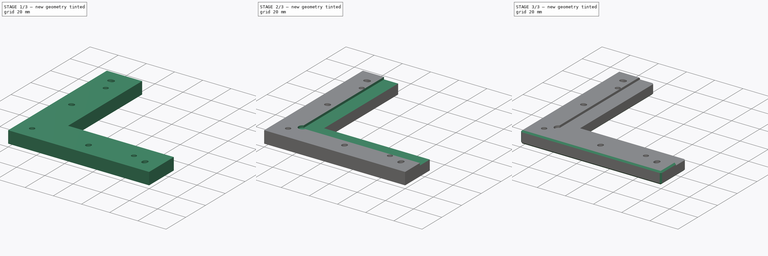
[diagram: build sequence overview — one tinted view per stage of 3, left to right]
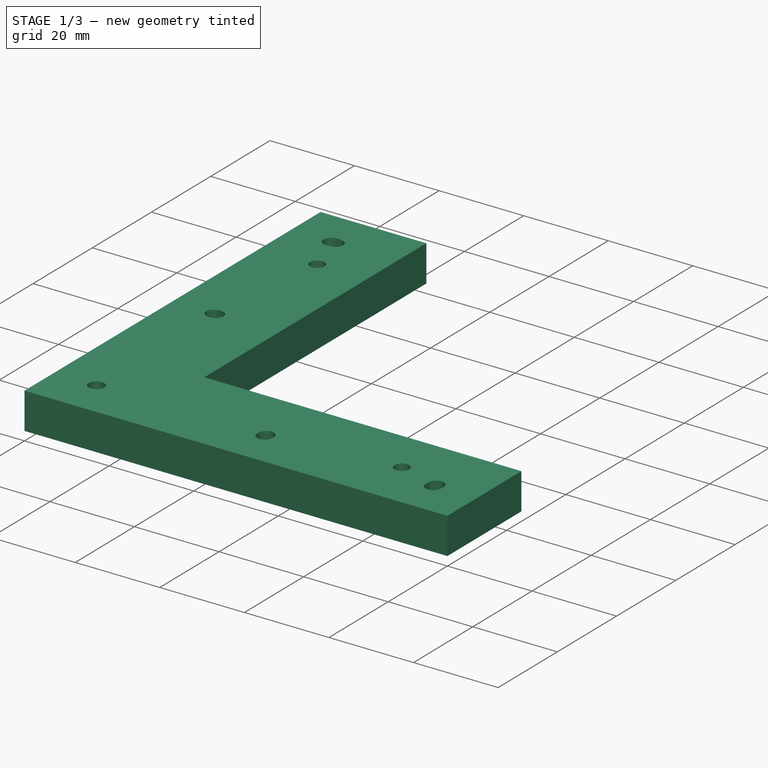
[diagram: stage 1 of 3 — iso view after this stage's code; geometry added in this stage tinted green]
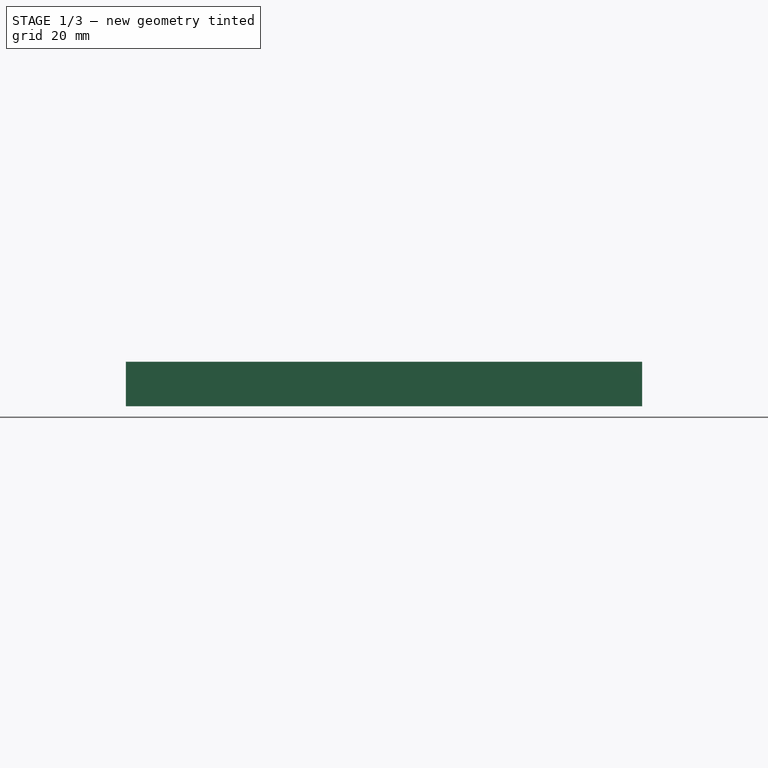
[diagram: stage 1 of 3 — front view after this stage's code; geometry added in this stage tinted green]
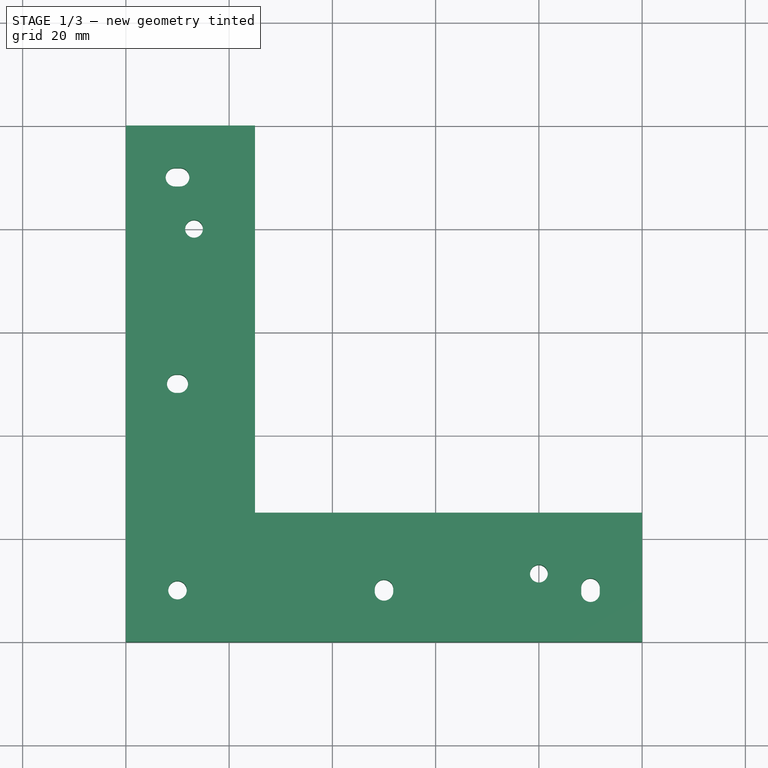
[diagram: stage 1 of 3 — top view after this stage's code; geometry added in this stage tinted green]
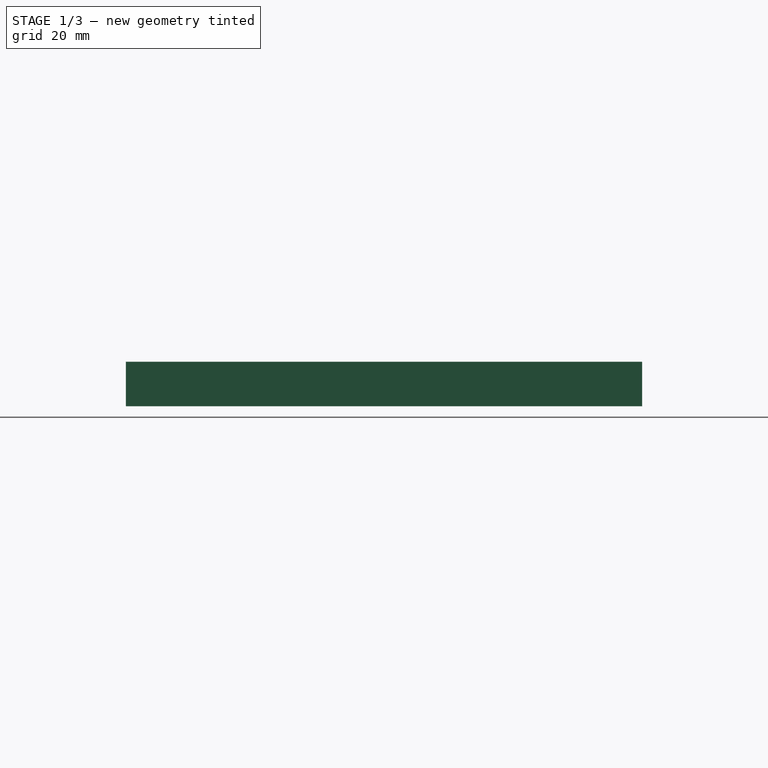
[diagram: stage 1 of 3 — right view after this stage's code; geometry added in this stage tinted green]
FCSTD DOCUMENT  (FreeCAD 0.16R6698 (Git))
Label: pnp board corner mount
License: All rights reserved
LicenseURL: http://en.wikipedia.org/wiki/All_rights_reserved
objects: Sketcher::SketchObject×4, PartDesign::Pocket×3, PartDesign::Pad×1, PartDesign::Chamfer×1
note: 13 computed .brp shape members not serialized (recipe doc carries the construction recipe); baked Part::Feature solids carry a one-line shape summary decoded from their .brp

FEATURE [Sketcher::SketchObject] Sketch
  sketch-geometry (6):
    g0: LineSegment StartX=0 StartY=0 StartZ=0 EndX=0 EndY=100 EndZ=0
    g1: LineSegment StartX=0 StartY=100 StartZ=0 EndX=25 EndY=100 EndZ=0
    g2: LineSegment StartX=25 StartY=100 StartZ=0 EndX=25 EndY=25 EndZ=0
    g3: LineSegment StartX=25 StartY=25 StartZ=0 EndX=100 EndY=25 EndZ=0
    g4: LineSegment StartX=100 StartY=25 StartZ=0 EndX=100 EndY=0 EndZ=0
    g5: LineSegment StartX=100 StartY=0 StartZ=0 EndX=0 EndY=0 EndZ=0
  constraints (16):
    c: Coincident(g-1,g0)
    c: Vertical(g0)
    c: Coincident(g0,g1)
    c: Horizontal(g1)
    c: Coincident(g1,g2)
    c: Vertical(g2)
    c: Horizontal(g3)
    c: Coincident(g3,g4)
    c: PointOnObject(g4,g-1)
    c: Vertical(g4)
    c: Coincident(g4,g5)
    c: Coincident(g5,g0)
    c: Equal(g5,g0)
    c: DistanceY(g0,g0) = 100
    c: Coincident(g2,g3)
    c: Equal(g1,g4)
FEATURE [PartDesign::Pad] Pad
  Length = 8.6
  Length2 = 100
  Sketch = -> Sketch
  Type = 0
FEATURE [Sketcher::SketchObject] Sketch001
  Placement = pos=(0,0,8.6) rot=(0,0,1;0rad)
  Support = -> Pad [Face8]
  sketch-geometry (22):
    g0: Circle CenterX=10 CenterY=10 CenterZ=0 NormalX=0 NormalY=0 NormalZ=1 Radius=1.8
    g1: ArcOfCircle CenterX=9.75 CenterY=50 CenterZ=0 NormalX=0 NormalY=0 NormalZ=1 Radius=1.8 StartAngle=1.5708 EndAngle=4.71239
    g2: ArcOfCircle CenterX=10.25 CenterY=50 CenterZ=0 NormalX=0 NormalY=0 NormalZ=1 Radius=1.8 StartAngle=4.71239 EndAngle=7.85398
    g3: LineSegment StartX=9.75 StartY=48.2 StartZ=0 EndX=10.25 EndY=48.2 EndZ=0
    g4: LineSegment StartX=9.75 StartY=51.8 StartZ=0 EndX=10.25 EndY=51.8 EndZ=0
    g5: LineSegment [constr] StartX=10 StartY=100 StartZ=0 EndX=10 EndY=10 EndZ=0
    g6: LineSegment [constr] StartX=10 StartY=10 StartZ=0 EndX=100 EndY=10 EndZ=0
    g7: ArcOfCircle CenterX=9.5 CenterY=90 CenterZ=0 NormalX=0 NormalY=0 NormalZ=1 Radius=1.8 StartAngle=1.5708 EndAngle=4.71239
    g8: ArcOfCircle CenterX=10.5 CenterY=90 CenterZ=0 NormalX=0 NormalY=0 NormalZ=1 Radius=1.8 StartAngle=4.71239 EndAngle=7.85398
    g9: LineSegment StartX=9.5 StartY=88.2 StartZ=0 EndX=10.5 EndY=88.2 EndZ=0
    g10: LineSegment StartX=9.5 StartY=91.8 StartZ=0 EndX=10.5 EndY=91.8 EndZ=0
    g11: ArcOfCircle CenterX=50 CenterY=10.25 CenterZ=0 NormalX=0 NormalY=0 NormalZ=1 Radius=1.8 StartAngle=0 EndAngle=3.14159
    g12: ArcOfCircle CenterX=50 CenterY=9.75 CenterZ=0 NormalX=0 NormalY=0 NormalZ=1 Radius=1.8 StartAngle=3.14159 EndAngle=6.28319
    g13: LineSegment StartX=48.2 StartY=10.25 StartZ=0 EndX=48.2 EndY=9.75 EndZ=0
    g14: LineSegment StartX=51.8 StartY=10.25 StartZ=0 EndX=51.8 EndY=9.75 EndZ=0
    g15: ArcOfCircle CenterX=90 CenterY=10.5 CenterZ=0 NormalX=0 NormalY=0 NormalZ=1 Radius=1.8 StartAngle=0 EndAngle=3.14159
    g16: ArcOfCircle CenterX=90 CenterY=9.5 CenterZ=0 NormalX=0 NormalY=0 NormalZ=1 Radius=1.8 StartAngle=3.14159 EndAngle=6.28319
    g17: LineSegment StartX=88.2 StartY=10.5 StartZ=0 EndX=88.2 EndY=9.5 EndZ=0
    g18: LineSegment StartX=91.8 StartY=10.5 StartZ=0 EndX=91.8 EndY=9.5 EndZ=0
    g19: Circle CenterX=80 CenterY=13.2 CenterZ=0 NormalX=0 NormalY=0 NormalZ=1 Radius=1.73
    g20: Circle CenterX=13.2 CenterY=80 CenterZ=0 NormalX=0 NormalY=0 NormalZ=1 Radius=1.73
    g21: Circle [constr] CenterX=80 CenterY=13.2 CenterZ=0 NormalX=0 NormalY=0 NormalZ=1 Radius=3
  constraints (45):
    c: Tangent(g1,g4) = 1.5708
    c: Tangent(g1,g3) = -1.5708
    c: Tangent(g3,g2) = -1.5708
    c: Tangent(g4,g2) = 1.5708
    c: Horizontal(g3)
    c: Equal(g1,g2)
    c: Vertical(g5)
    c: Coincident(g6,g0)
    c: Horizontal(g6)
    c: Tangent(g7,g10) = 1.5708
    c: Tangent(g7,g9) = -1.5708
    c: Tangent(g9,g8) = -1.5708
    c: Tangent(g10,g8) = 1.5708
    c: Horizontal(g9)
    c: Equal(g7,g8)
    c: DistanceY(g0,g1) = 40
    c: DistanceY(g1,g7) = 40
    c: Tangent(g11,g14) = 1.5708
    c: Tangent(g11,g13) = -1.5708
    c: Tangent(g13,g12) = -1.5708
    c: Tangent(g14,g12) = 1.5708
    c: Vertical(g13)
    c: Equal(g11,g12)
    c: Tangent(g15,g18) = 1.5708
    c: Tangent(g15,g17) = -1.5708
    c: Tangent(g17,g16) = -1.5708
    c: Tangent(g18,g16) = 1.5708
    c: Vertical(g17)
    c: Equal(g15,g16)
    c: Equal(g15,g11)
    c: Equal(g11,g0)
    c: Equal(g0,g1)
    c: Equal(g1,g7)
    c: DistanceX(g0,g12) = 40
    c: Coincident(g0,g5)
    c: DistanceX(g11,g15) = 40
    c: Radius(g0) = 1.8
    c: DistanceX(g0,g19) = 70
    c: DistanceY(g0,g20) = 70
    c: Radius(g20) = 1.73
    c: Equal(g20,g19)
    c: Coincident(g21,g19)
    c: Radius(g21) = 3
    c: DistanceY(g6,g19) = 3.2
    c: DistanceX(g5,g20) = 3.2
FEATURE [PartDesign::Pocket] Pocket
  Length = 5
  Sketch = -> Sketch001
  Type = 1
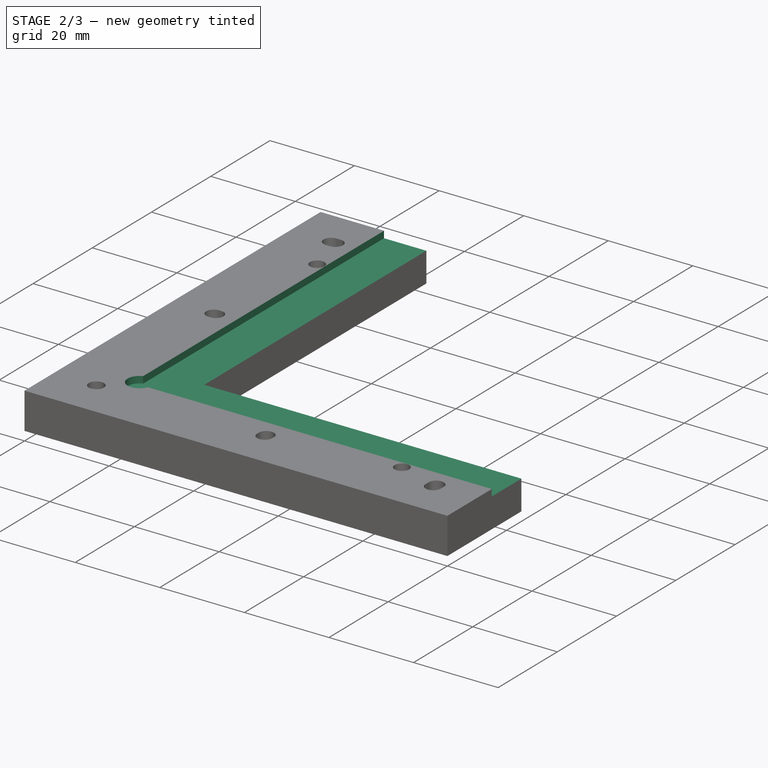
[diagram: stage 2 of 3 — iso view after this stage's code; geometry added in this stage tinted green]
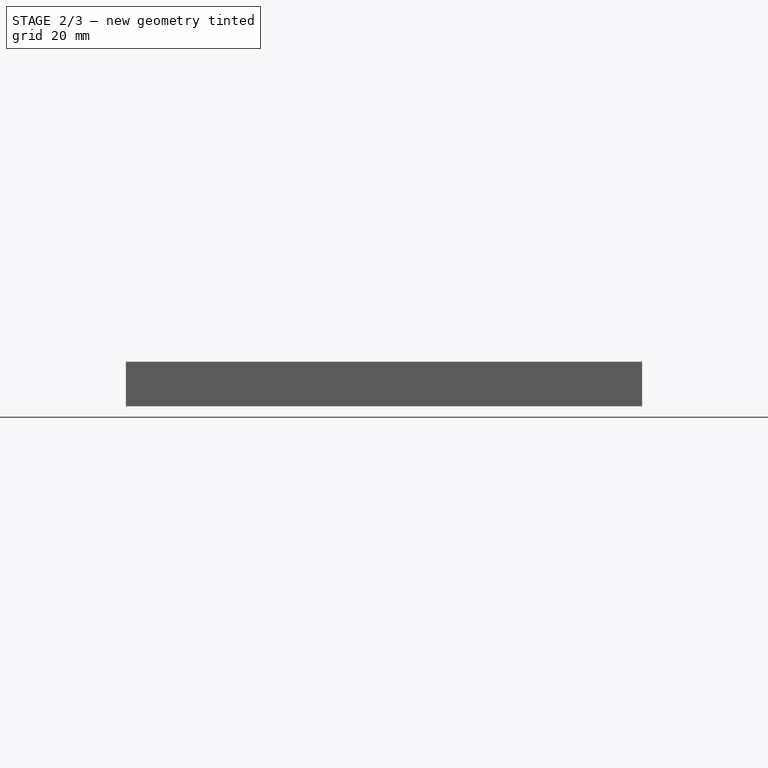
[diagram: stage 2 of 3 — front view after this stage's code; geometry added in this stage tinted green]
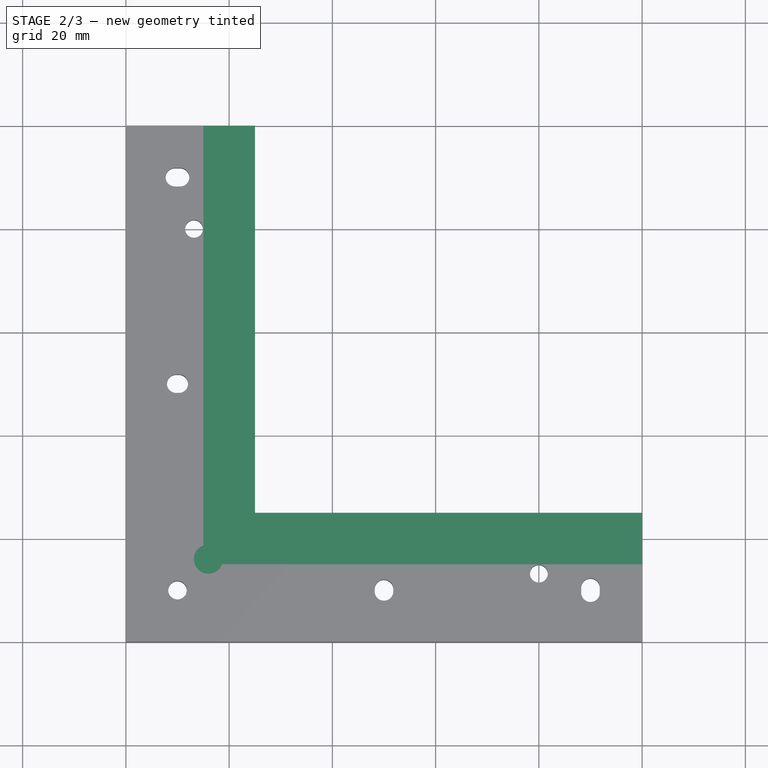
[diagram: stage 2 of 3 — top view after this stage's code; geometry added in this stage tinted green]
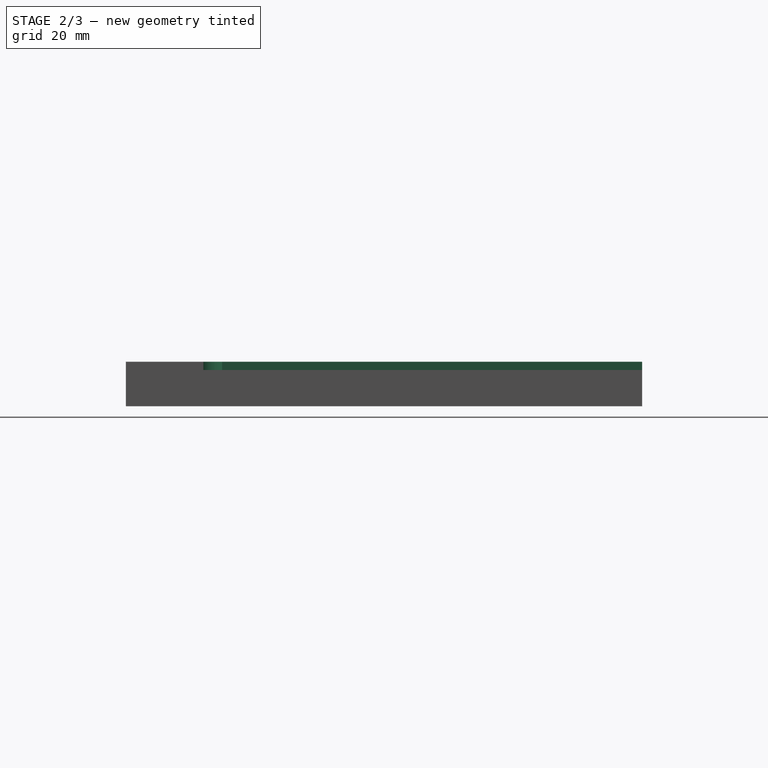
[diagram: stage 2 of 3 — right view after this stage's code; geometry added in this stage tinted green]
FEATURE [Sketcher::SketchObject] Sketch002
  Placement = pos=(0,0,8.6) rot=(0,0,1;0rad)
  Support = -> Pocket [Face5]
  sketch-geometry (8):
    g0: LineSegment StartX=15 StartY=110 StartZ=0 EndX=110 EndY=110 EndZ=0
    g1: LineSegment StartX=110 StartY=110 StartZ=0 EndX=110 EndY=15 EndZ=0
    g2: LineSegment StartX=110 StartY=15 StartZ=0 EndX=18.6458 EndY=15 EndZ=0
    g3: LineSegment StartX=15 StartY=18.6458 StartZ=0 EndX=15 EndY=110 EndZ=0
    g4: Circle [constr] CenterX=10 CenterY=10 CenterZ=0 NormalX=0 NormalY=0 NormalZ=1 Radius=3
    g5: Circle [constr] CenterX=50 CenterY=10 CenterZ=0 NormalX=0 NormalY=0 NormalZ=1 Radius=3
    g6: Circle [constr] CenterX=90 CenterY=10 CenterZ=0 NormalX=0 NormalY=0 NormalZ=1 Radius=3
    g7: ArcOfCircle CenterX=16 CenterY=16 CenterZ=0 NormalX=0 NormalY=0 NormalZ=1 Radius=2.82843 StartAngle=1.93216 EndAngle=5.92182
  constraints (12):
    c: Coincident(g0,g1)
    c: Coincident(g1,g2)
    c: Coincident(g3,g0)
    c: Horizontal(g0)
    c: Horizontal(g2)
    c: Vertical(g1)
    c: Vertical(g3)
    c: Radius(g4) = 3
    c: Equal(g4,g5)
    c: Equal(g4,g6)
    c: Coincident(g3,g7)
    c: Coincident(g2,g7)
FEATURE [PartDesign::Pocket] Pocket001
  Length = 1.6
  Sketch = -> Sketch002
  Type = 0
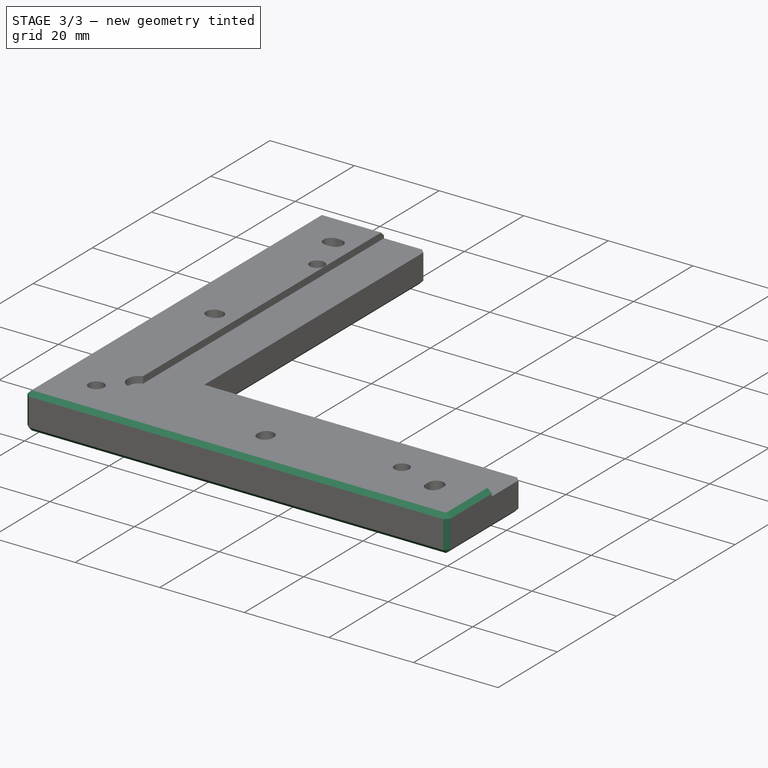
[diagram: stage 3 of 3 — iso view after this stage's code; geometry added in this stage tinted green]
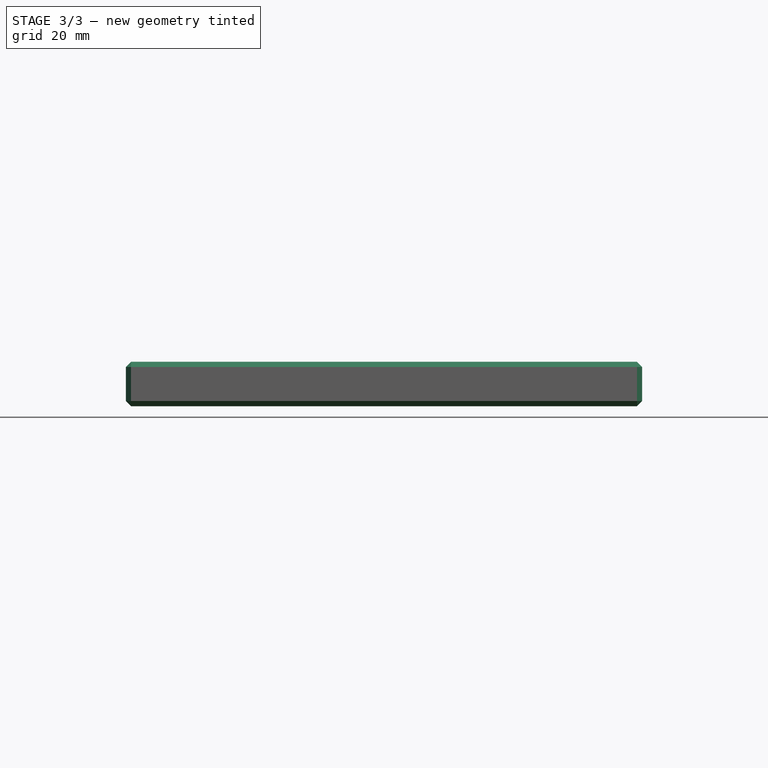
[diagram: stage 3 of 3 — front view after this stage's code; geometry added in this stage tinted green]
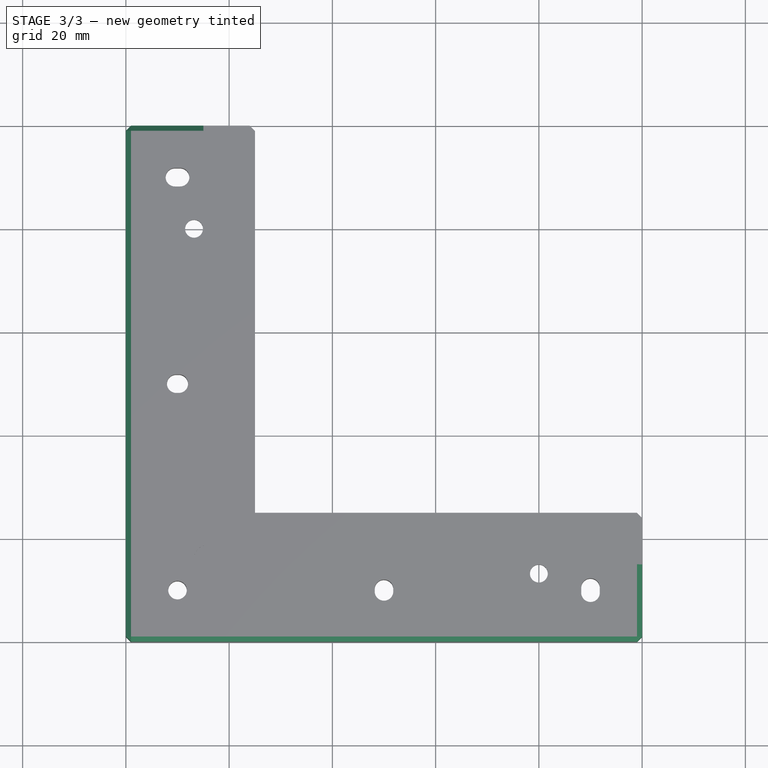
[diagram: stage 3 of 3 — top view after this stage's code; geometry added in this stage tinted green]
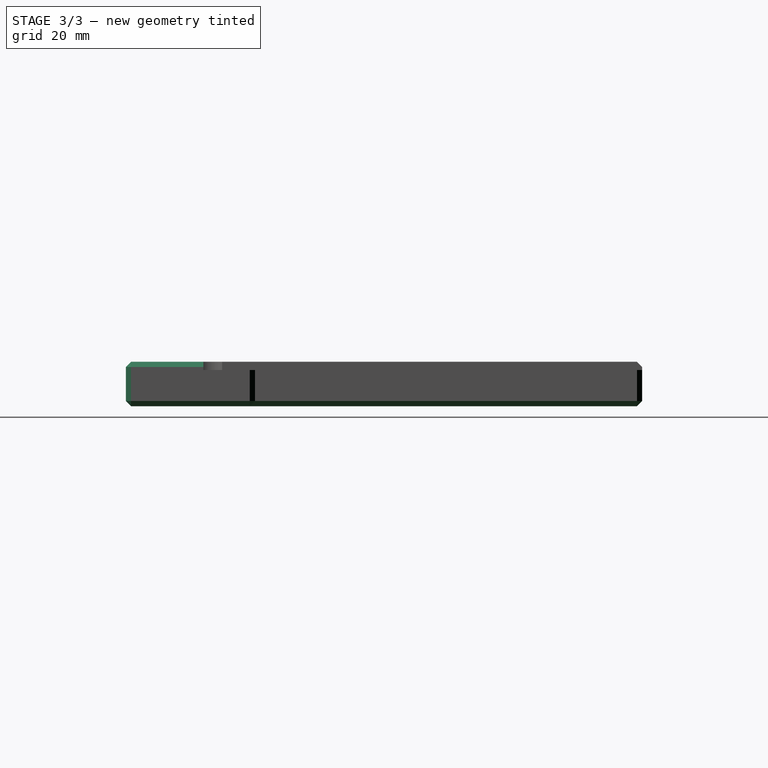
[diagram: stage 3 of 3 — right view after this stage's code; geometry added in this stage tinted green]
FEATURE [Sketcher::SketchObject] Sketch003
  ExternalGeometry = -> [Pocket001]
  Placement = pos=(0,0,0) rot=(1,0,0;3.14159rad)
  Support = -> Pocket001 [Face4]
  sketch-geometry (14):
    g0: LineSegment StartX=81.8036 StartY=-15.8135 StartZ=0 EndX=83.1652 EndY=-12.9448 EndZ=0
    g1: LineSegment StartX=83.1652 StartY=-12.9448 StartZ=0 EndX=81.3616 EndY=-10.3313 EndZ=0
    g2: LineSegment StartX=81.3616 StartY=-10.3313 StartZ=0 EndX=78.1964 EndY=-10.5865 EndZ=0
    g3: LineSegment StartX=78.1964 StartY=-10.5865 StartZ=0 EndX=76.8348 EndY=-13.4552 EndZ=0
    g4: LineSegment StartX=76.8348 StartY=-13.4552 StartZ=0 EndX=78.6384 EndY=-16.0687 EndZ=0
    g5: LineSegment StartX=78.6384 StartY=-16.0687 StartZ=0 EndX=81.8036 EndY=-15.8135 EndZ=0
    g6: Circle [constr] CenterX=80 CenterY=-13.2 CenterZ=0 NormalX=0 NormalY=0 NormalZ=1 Radius=3.17543
    g7: LineSegment StartX=16.3749 StartY=-80.0568 StartZ=0 EndX=14.8366 EndY=-77.2788 EndZ=0
    g8: LineSegment StartX=14.8366 StartY=-77.2788 StartZ=0 EndX=11.6617 EndY=-77.2221 EndZ=0
    g9: LineSegment StartX=11.6617 StartY=-77.2221 StartZ=0 EndX=10.0251 EndY=-79.9432 EndZ=0
    g10: LineSegment StartX=10.0251 StartY=-79.9432 StartZ=0 EndX=11.5634 EndY=-82.7212 EndZ=0
    g11: LineSegment StartX=11.5634 StartY=-82.7212 StartZ=0 EndX=14.7383 EndY=-82.7779 EndZ=0
    g12: LineSegment StartX=14.7383 StartY=-82.7779 StartZ=0 EndX=16.3749 EndY=-80.0568 EndZ=0
    g13: Circle [constr] CenterX=13.2 CenterY=-80 CenterZ=0 NormalX=0 NormalY=0 NormalZ=1 Radius=3.17543
  constraints (30):
    c: Coincident(g0,g1)
    c: Coincident(g1,g2)
    c: Coincident(g2,g3)
    c: Coincident(g3,g4)
    c: Coincident(g4,g5)
    c: Coincident(g5,g0)
    c: Equal(g0, g1-g5) x5
    c: PointOnObject(g0,g6)
    c: PointOnObject(g1,g6)
    c: PointOnObject(g2,g6)
    c: PointOnObject(g3,g6)
    c: PointOnObject(g4,g6)
    c: PointOnObject(g5,g6)
    c: Coincident(g6,g-3)
    c: Distance(g2,g0) = 5.5
    c: Coincident(g7,g8)
    c: Coincident(g8,g9)
    c: Coincident(g9,g10)
    c: Coincident(g10,g11)
    c: Coincident(g11,g12)
    c: Coincident(g12,g7)
    c: Equal(g7, g8-g12) x5
    c: PointOnObject(g7,g13)
    c: PointOnObject(g8,g13)
    c: PointOnObject(g9,g13)
    c: PointOnObject(g10,g13)
    c: PointOnObject(g11,g13)
    c: PointOnObject(g12,g13)
    c: Coincident(g13,g-4)
    c: Distance(g8,g7) = 5.5
FEATURE [PartDesign::Pocket] Pocket002
  Length = 5
  Sketch = -> Sketch003
  Type = 0
FEATURE [PartDesign::Chamfer] Chamfer
  Base = -> Pocket002 [Edge7,Edge4,Edge6,Edge1,Edge5,Edge48,Edge13,Edge70,Edge9,Edge12,Edge3,Edge8,Edge14,Edge15,Edge2]
  Size = 1
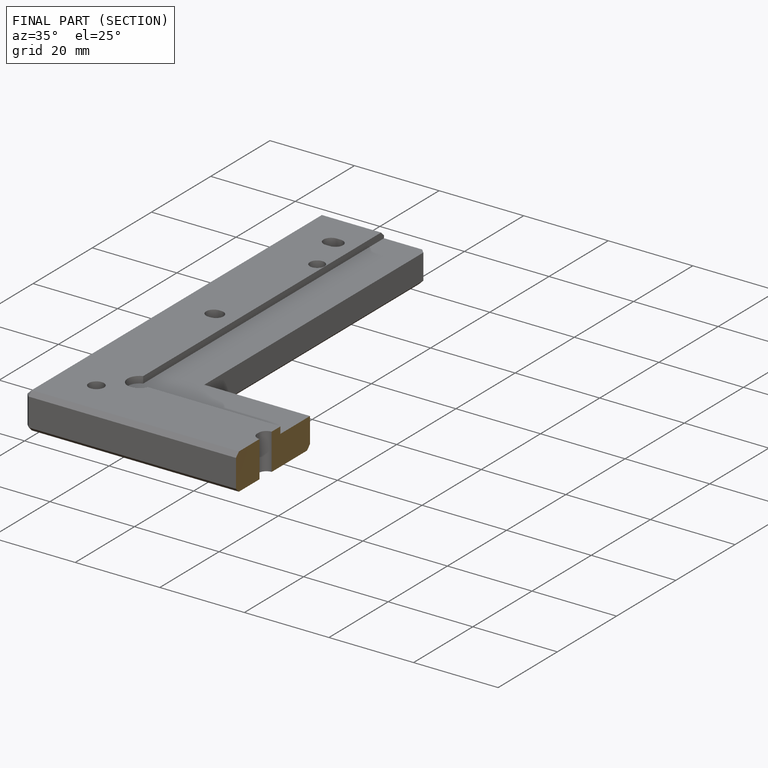
[diagram: finished part — half-section view (interior)]
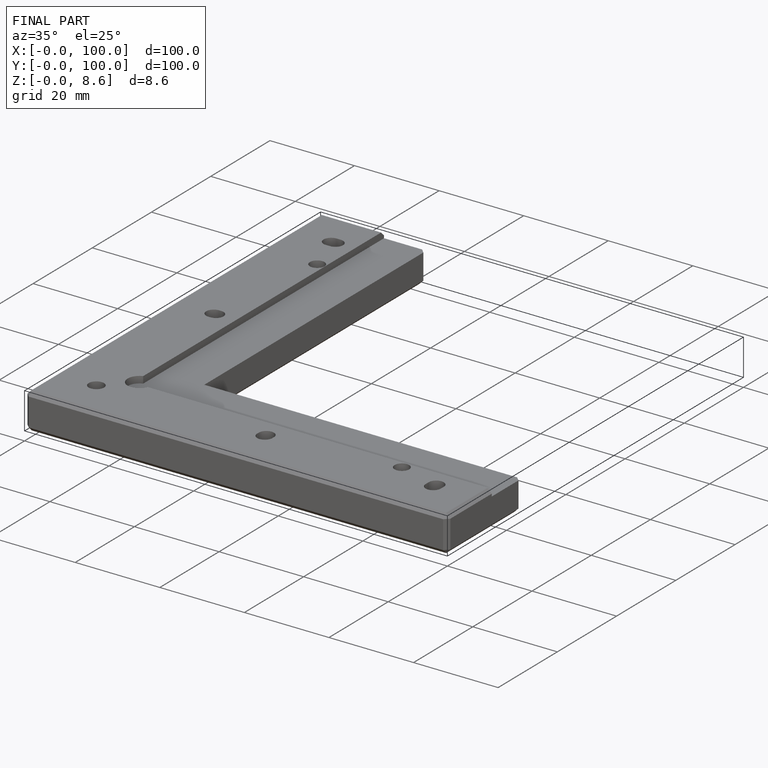
[diagram: finished part — iso view with bounding-box wireframe]
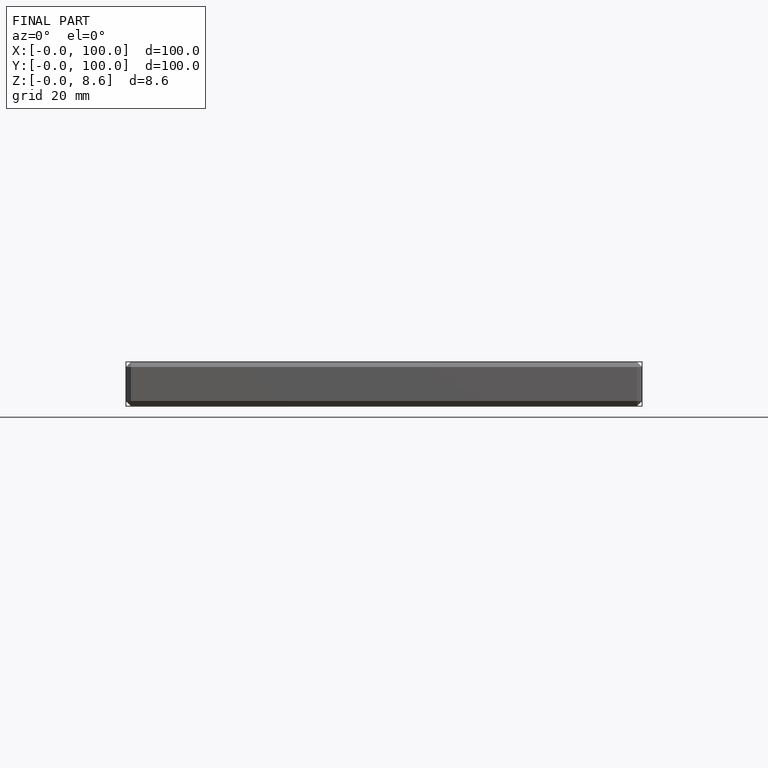
[diagram: finished part — front view with bounding-box wireframe]
